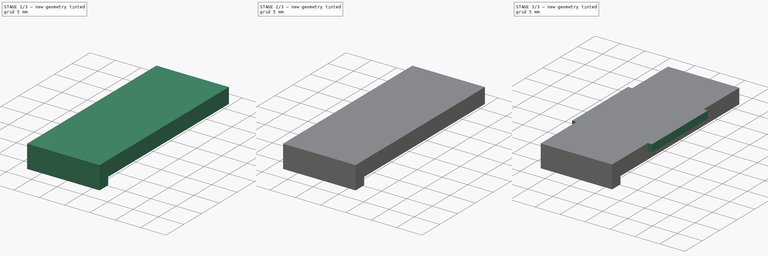
[diagram: build sequence overview — one tinted view per stage of 3, left to right]
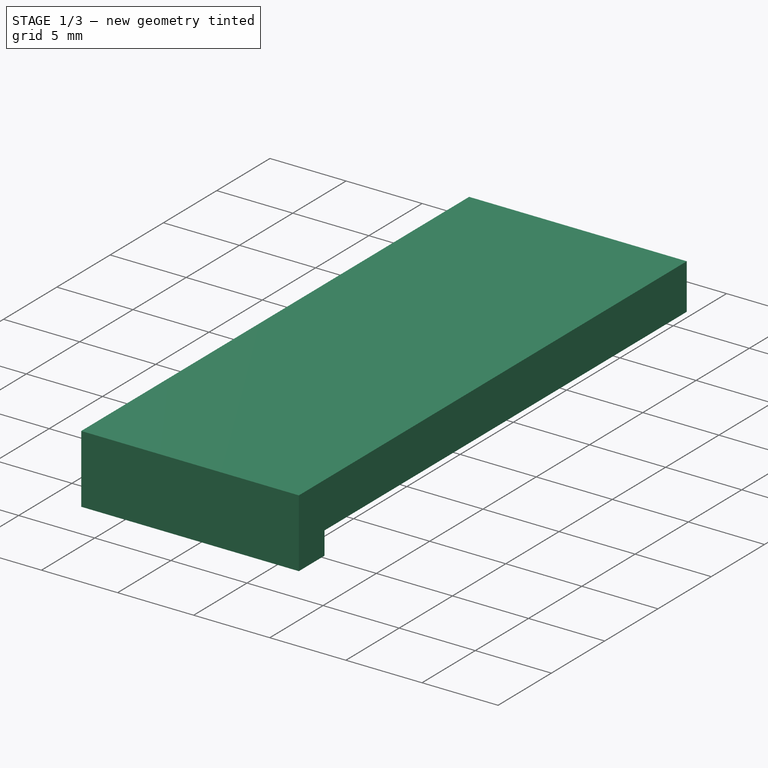
[diagram: stage 1 of 3 — iso view after this stage's code; geometry added in this stage tinted green]
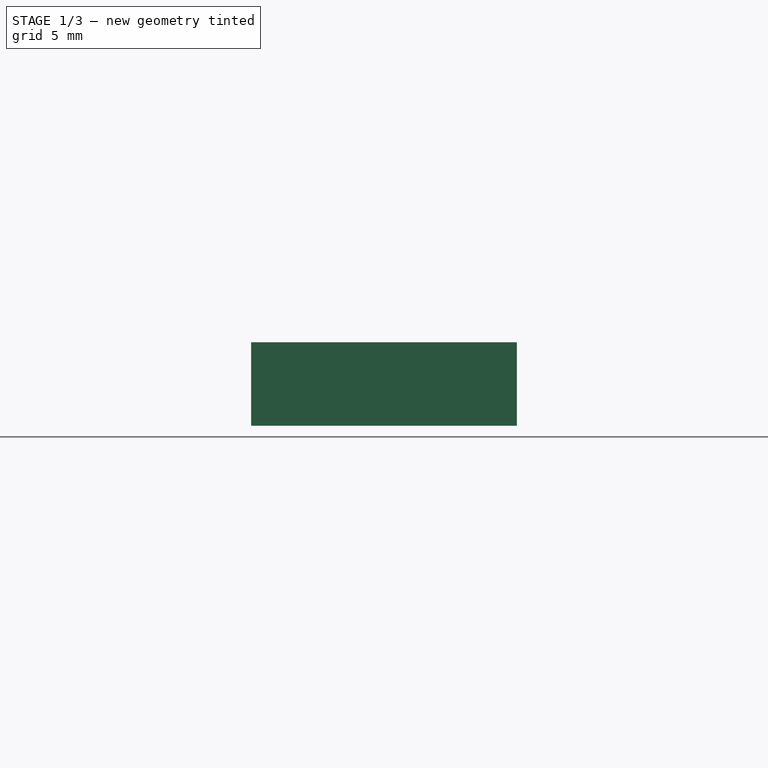
[diagram: stage 1 of 3 — front view after this stage's code; geometry added in this stage tinted green]
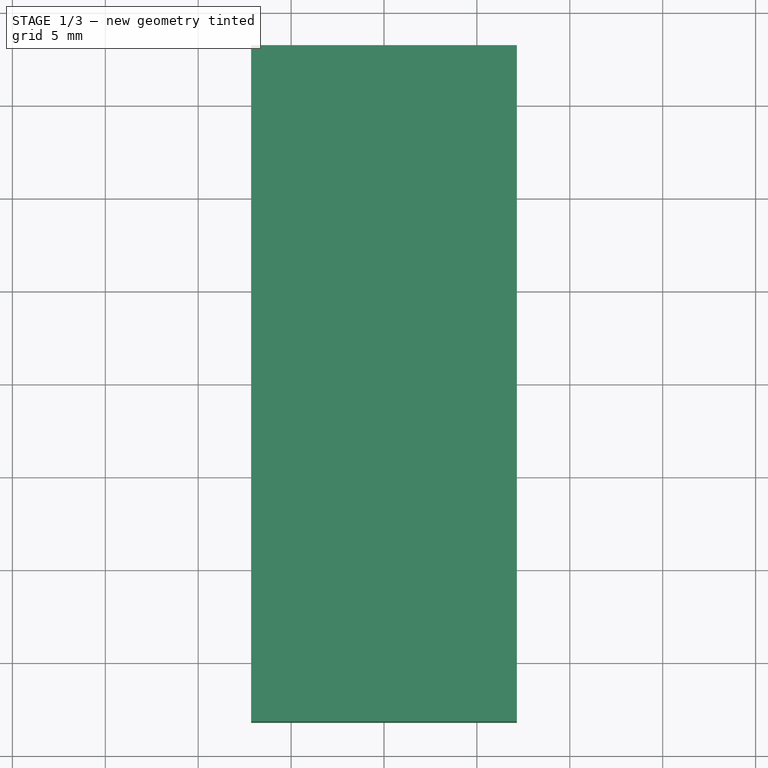
[diagram: stage 1 of 3 — top view after this stage's code; geometry added in this stage tinted green]
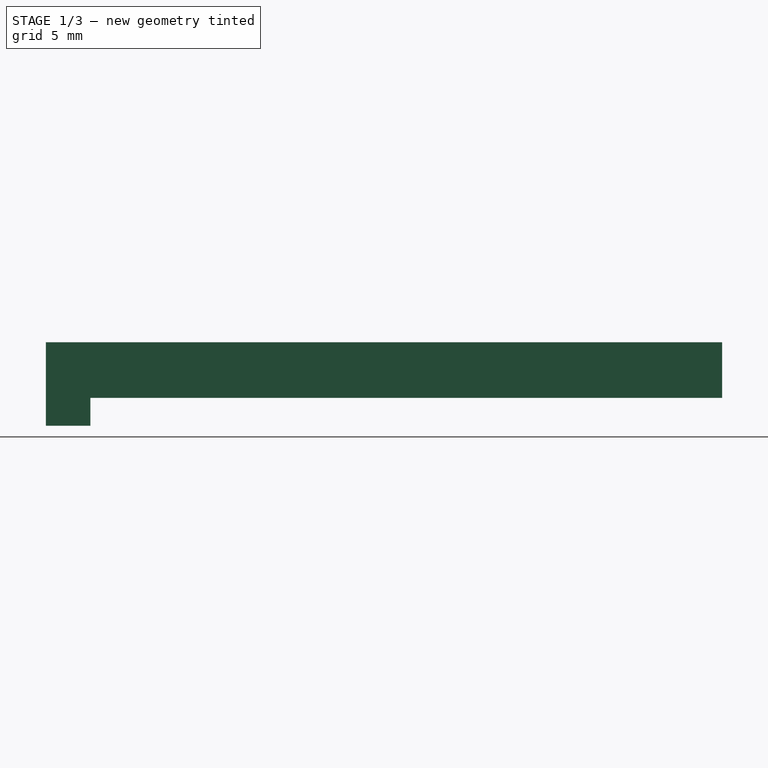
[diagram: stage 1 of 3 — right view after this stage's code; geometry added in this stage tinted green]
FCSTD DOCUMENT  (FreeCAD 1.0R39319 (Git))
Label: SwitchHoleNegative
License: All rights reserved
LicenseURL: https://en.wikipedia.org/wiki/All_rights_reserved
objects: Sketcher::SketchObject×7, PartDesign::Pad×7, PartDesign::Body×3, App::Link×1
note: 38 computed .brp shape members not serialized (recipe doc carries the construction recipe); baked Part::Feature solids carry a one-line shape summary decoded from their .brp
EXTERNAL_REF file=Config.FCStd obj=VarSet
EXTERNAL_REF file=lib/ec11.FCStd obj=EC11B_SW_Vert_F

FEATURE [PartDesign::Body] Body003  label="RotaryPocket"
  AllowCompound = false
  Group = -> [Sketch,Pad,Sketch003,Pad003,Sketch004,Pad004]
  Origin = -> Origin004
  Tip = -> Pad004
FEATURE [Sketcher::SketchObject] Sketch005
  ArcFitTolerance = 1e-06
  AttachmentSupport = -> [XY_Plane]
  FullyConstrained = true
  MakeInternals = false
  MapMode = 5
  sketch-geometry (4):
    g0: LineSegment StartX=-7.15 StartY=-18.2 StartZ=0 EndX=7.15 EndY=-18.2 EndZ=0
    g1: LineSegment StartX=7.15 StartY=-18.2 StartZ=0 EndX=7.15 EndY=18.2 EndZ=0
    g2: LineSegment StartX=7.15 StartY=18.2 StartZ=0 EndX=-7.15 EndY=18.2 EndZ=0
    g3: LineSegment StartX=-7.15 StartY=18.2 StartZ=0 EndX=-7.15 EndY=-18.2 EndZ=0
  constraints (11):
    c: Coincident(g0,g1)
    c: Coincident(g1,g2)
    c: Coincident(g2,g3)
    c: Coincident(g3,g0)
    c: Horizontal(g0)
    c: Horizontal(g2)
    c: Vertical(g1)
    c: Vertical(g3)
    c: Symmetric(g2,g0,g-1)
    c: DistanceX(g2,g2) = 14.3
    c: DistanceY(g3,g3) = 36.4
FEATURE [PartDesign::Pad] Pad005
  Direction = (0,0,1)
  Length = 3
  Length2 = 10
  Profile = -> Sketch005
  ReferenceAxis = -> Sketch005 [N_Axis]
  Refine = true
  Suppressed = false
  Type = 0
FEATURE [Sketcher::SketchObject] Sketch006
  ArcFitTolerance = 1e-06
  AttachmentSupport = -> [Pad005]
  ExternalGeometry = -> [Pad005]
  FullyConstrained = true
  MakeInternals = false
  MapMode = 5
  Placement = pos=(0,0,0) rot=(1,0,0;3.14159rad)
  sketch-geometry (4):
    g0: LineSegment StartX=-7.15 StartY=18.2 StartZ=0 EndX=-7.15 EndY=15.8 EndZ=0
    g1: LineSegment StartX=-7.15 StartY=15.8 StartZ=0 EndX=7.15 EndY=15.8 EndZ=0
    g2: LineSegment StartX=7.15 StartY=15.8 StartZ=0 EndX=7.15 EndY=18.2 EndZ=0
    g3: LineSegment StartX=7.15 StartY=18.2 StartZ=0 EndX=-7.15 EndY=18.2 EndZ=0
  constraints (11):
    c: Coincident(g0,g1)
    c: Coincident(g1,g2)
    c: Coincident(g2,g3)
    c: Coincident(g3,g0)
    c: Vertical(g0)
    c: Vertical(g2)
    c: Horizontal(g1)
    c: Horizontal(g3)
    c: Coincident(g0,g-4)
    c: PointOnObject(g1,g-5)
    c: DistanceY(g2,g2) = 2.4
FEATURE [PartDesign::Pad] Pad006
  BaseFeature = -> Pad005
  Direction = (0,0,-1)
  Length = 1.5
  Length2 = 10
  Profile = -> Sketch006
  ReferenceAxis = -> Sketch006 [N_Axis]
  Refine = true
  Suppressed = false
  Type = 0
  expr: Length = <<Config>>#<<Vars>>.SwitchPlateThickness
FEATURE [PartDesign::Body] Body  label="NiceViewPocket"
  AllowCompound = false
  Group = -> [Sketch005,Pad005,Sketch006,Pad006]
  Origin = -> Origin
  Tip = -> Pad006
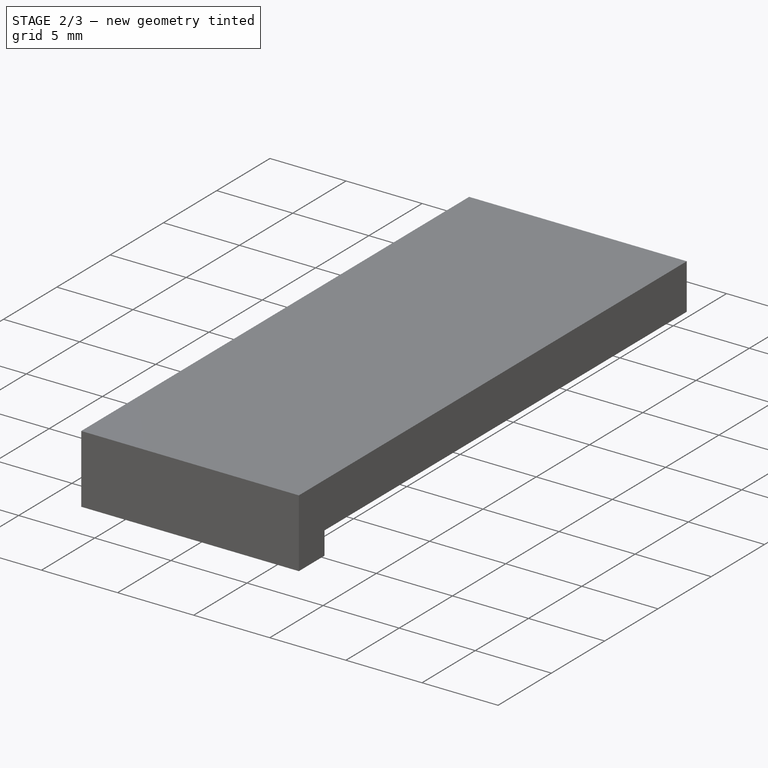
[diagram: stage 2 of 3 — iso view after this stage's code; geometry added in this stage tinted green]
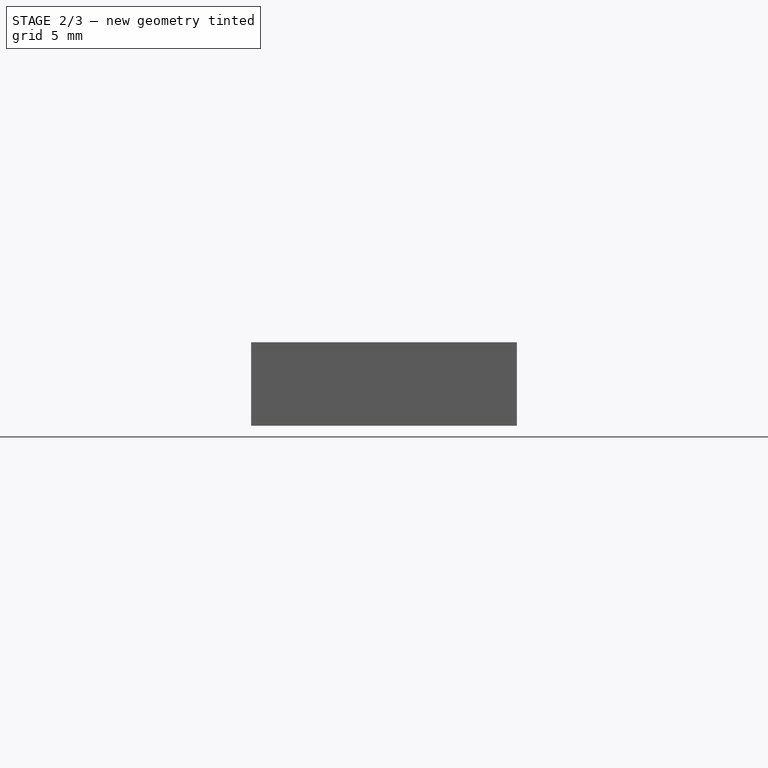
[diagram: stage 2 of 3 — front view after this stage's code; geometry added in this stage tinted green]
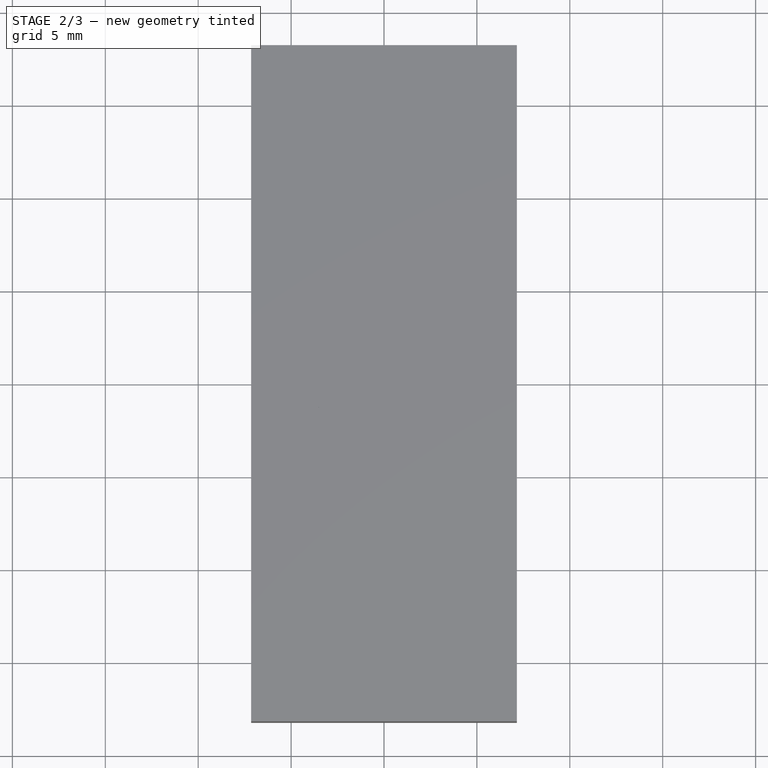
[diagram: stage 2 of 3 — top view after this stage's code; geometry added in this stage tinted green]
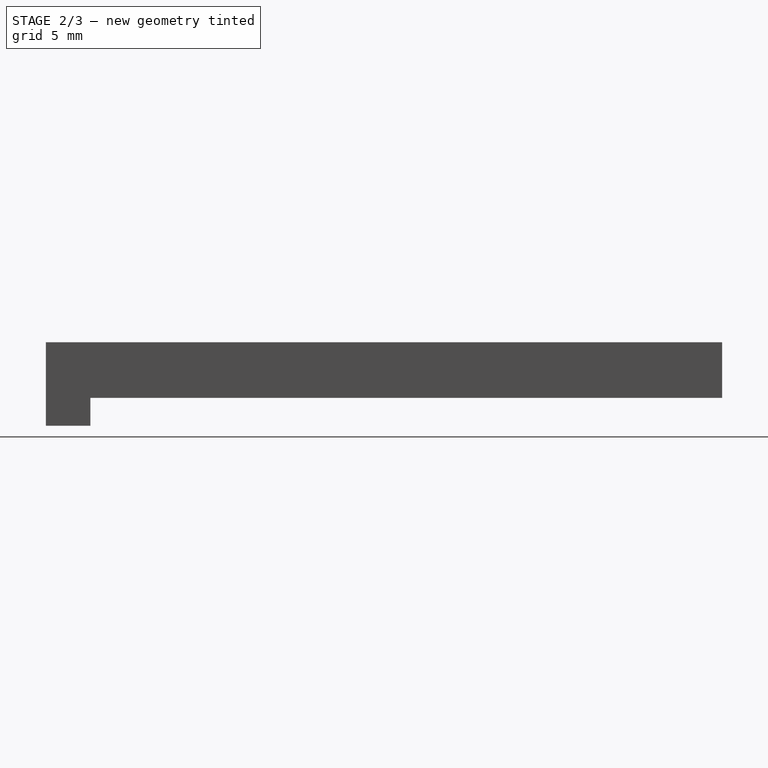
[diagram: stage 2 of 3 — right view after this stage's code; geometry added in this stage tinted green]
FEATURE [PartDesign::Body] Body001  label="SwitchPocket"
  AllowCompound = false
  Group = -> [Sketch001,Pad001,Sketch002,Pad002]
  Origin = -> Origin003
  Placement = pos=(109.5,4.5,0) rot=(0,0,1;0rad)
  Tip = -> Pad002
FEATURE [Sketcher::SketchObject] Sketch
  ArcFitTolerance = 1e-06
  AttachmentSupport = -> [XY_Plane004]
  FullyConstrained = true
  MakeInternals = false
  MapMode = 5
  sketch-geometry (4):
    g0: LineSegment StartX=-6 StartY=-7.1 StartZ=0 EndX=6 EndY=-7.1 EndZ=0
    g1: LineSegment StartX=6 StartY=-7.1 StartZ=0 EndX=6 EndY=7.1 EndZ=0
    g2: LineSegment StartX=6 StartY=7.1 StartZ=0 EndX=-6 EndY=7.1 EndZ=0
    g3: LineSegment StartX=-6 StartY=7.1 StartZ=0 EndX=-6 EndY=-7.1 EndZ=0
  constraints (11):
    c: Coincident(g0,g1)
    c: Coincident(g1,g2)
    c: Coincident(g2,g3)
    c: Coincident(g3,g0)
    c: Horizontal(g0)
    c: Horizontal(g2)
    c: Vertical(g1)
    c: Vertical(g3)
    c: DistanceX(g2,g2) = 12
    c: DistanceY(g3,g3) = 14.2
    c: Symmetric(g2,g0,g-1)
FEATURE [App::Link] Link  label="EC11B-SW-Vert-F"
  LinkPlacement = pos=(0,-0.399999,-5) rot=(0,0,1;0rad)
  LinkedObject = -> <external lib/ec11.FCStd>#EC11B_SW_Vert_F
  Placement = pos=(0,-0.399999,-5) rot=(0,0,1;0rad)
FEATURE [PartDesign::Pad] Pad
  Direction = (0,0,1)
  Length = 1.5
  Length2 = 10
  Profile = -> Sketch
  ReferenceAxis = -> Sketch [N_Axis]
  Refine = true
  Suppressed = false
  Type = 0
  expr: Length = <<Config>>#<<Vars>>.PlateThickness - <<Config>>#<<Vars>>.SwitchPlateThickness
FEATURE [Sketcher::SketchObject] Sketch003
  ArcFitTolerance = 1e-06
  AttachmentSupport = -> [Pad]
  FullyConstrained = true
  MakeInternals = false
  MapMode = 5
  Placement = pos=(0,0,1.5) rot=(0,0,1;0rad)
  sketch-geometry (1):
    g0: Circle CenterX=0 CenterY=0 CenterZ=0 NormalX=0 NormalY=0 NormalZ=1 AngleXU=0 Radius=3.75
  constraints (2):
    c: Coincident(g0,g-1)
    c: Diameter(g0) = 7.5
FEATURE [PartDesign::Pad] Pad003
  BaseFeature = -> Pad
  Direction = (0,0,1)
  Length = 1.5
  Length2 = 10
  Profile = -> Sketch003
  ReferenceAxis = -> Sketch003 [N_Axis]
  Refine = true
  Suppressed = false
  Type = 0
  expr: Length = <<Config>>#<<Vars>>.SwitchPlateThickness
FEATURE [Sketcher::SketchObject] Sketch004
  ArcFitTolerance = 1e-06
  AttachmentSupport = -> [Pad003]
  ExternalGeometry = -> [Pad003]
  FullyConstrained = true
  MakeInternals = false
  MapMode = 5
  Placement = pos=(0,0,1.5) rot=(0,0,1;0rad)
  sketch-geometry (4):
    g0: LineSegment StartX=-1.075 StartY=-7.1 StartZ=0 EndX=1.075 EndY=-7.1 EndZ=0
    g1: LineSegment StartX=1.075 StartY=-7.1 StartZ=0 EndX=1.075 EndY=-5.9 EndZ=0
    g2: LineSegment StartX=1.075 StartY=-5.9 StartZ=0 EndX=-1.075 EndY=-5.9 EndZ=0
    g3: LineSegment StartX=-1.075 StartY=-5.9 StartZ=0 EndX=-1.075 EndY=-7.1 EndZ=0
  constraints (11):
    c: Coincident(g0,g1)
    c: Coincident(g1,g2)
    c: Coincident(g2,g3)
    c: Coincident(g3,g0)
    c: Horizontal(g0)
    c: Vertical(g1)
    c: Vertical(g3)
    c: PointOnObject(g0,g-3)
    c: Symmetric(g1,g2,g-2)
    c: Distance(g1,g3) = 2.15
    c: Distance(g0,g2) = 1.2
FEATURE [PartDesign::Pad] Pad004
  BaseFeature = -> Pad003
  Direction = (0,0,1)
  Length = 1.5
  Length2 = 10
  Profile = -> Sketch004
  ReferenceAxis = -> Sketch004 [N_Axis]
  Refine = true
  Suppressed = false
  Type = 0
  expr: Length = <<Config>>#<<Vars>>.SwitchPlateThickness
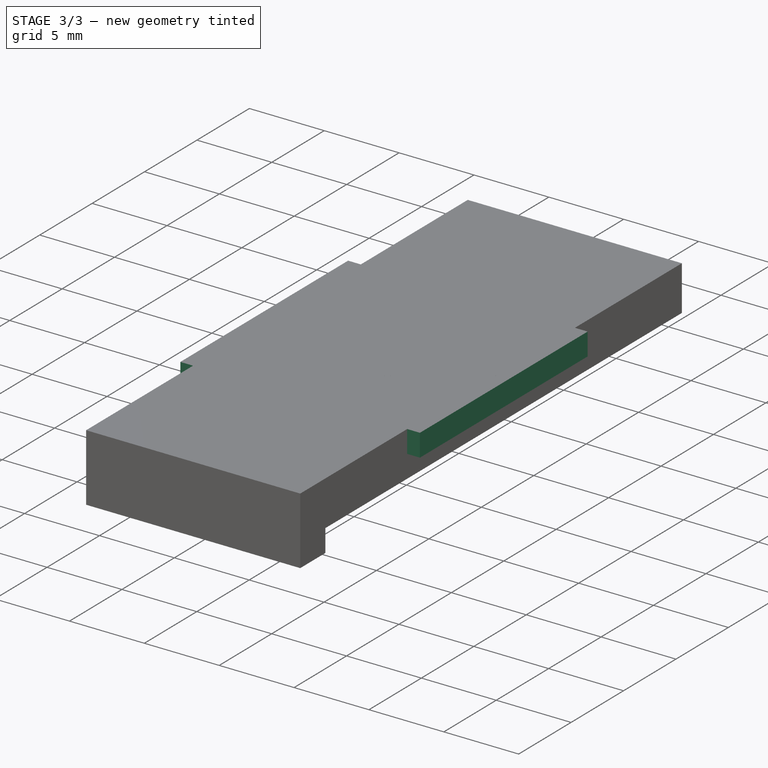
[diagram: stage 3 of 3 — iso view after this stage's code; geometry added in this stage tinted green]
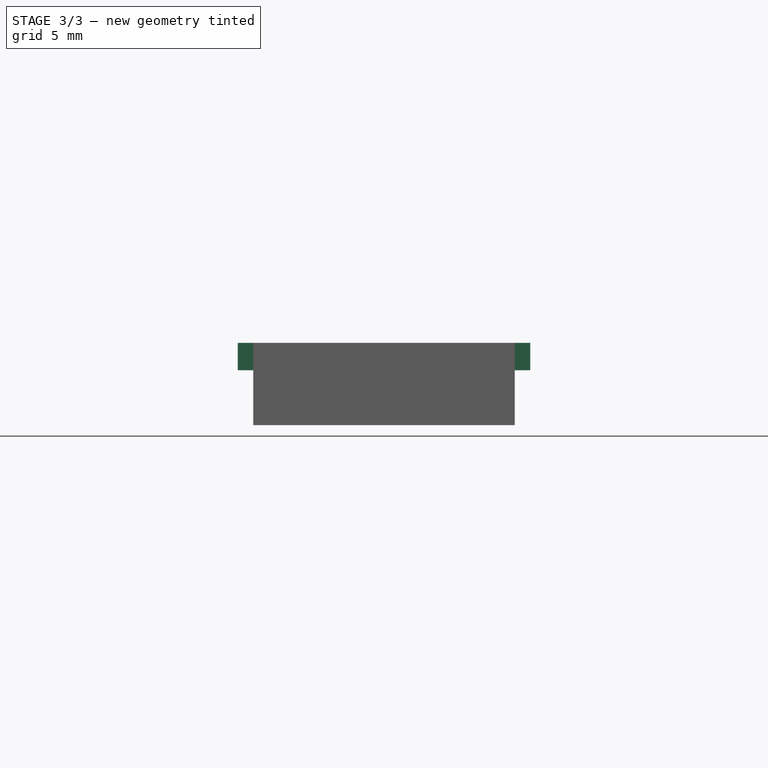
[diagram: stage 3 of 3 — front view after this stage's code; geometry added in this stage tinted green]
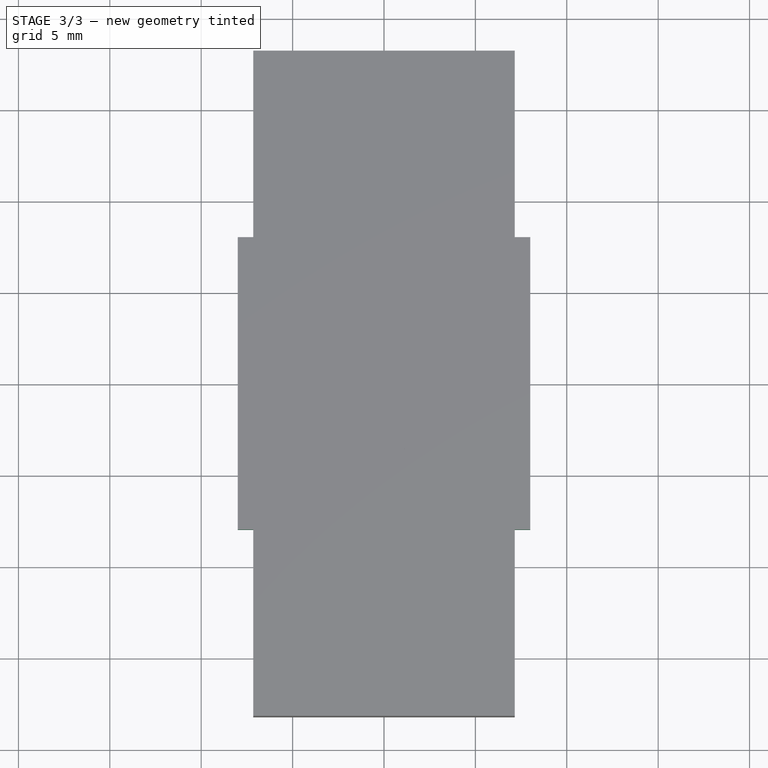
[diagram: stage 3 of 3 — top view after this stage's code; geometry added in this stage tinted green]
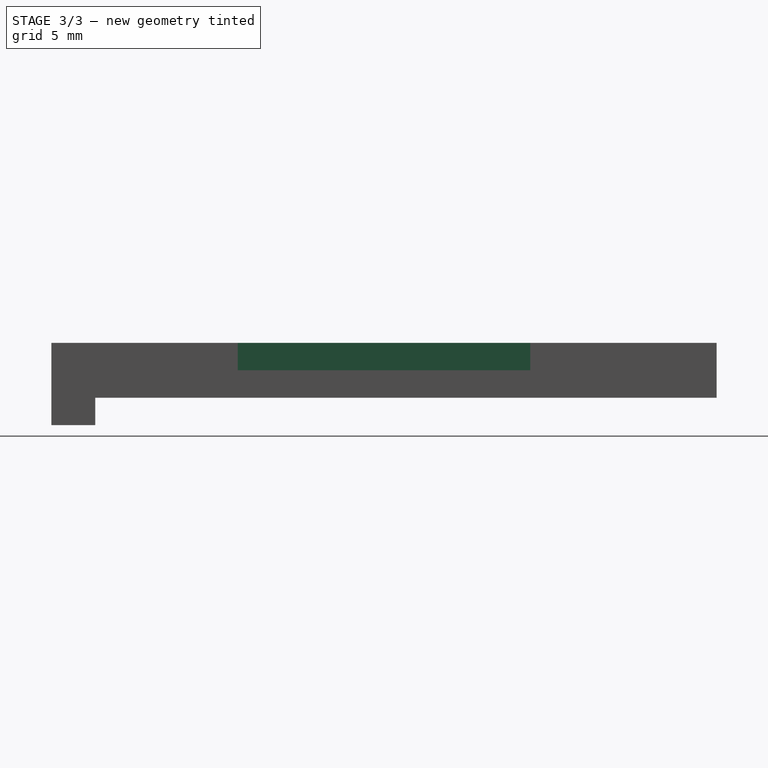
[diagram: stage 3 of 3 — right view after this stage's code; geometry added in this stage tinted green]
FEATURE [Sketcher::SketchObject] Sketch001
  ArcFitTolerance = 1e-06
  AttachmentSupport = -> [XY_Plane003]
  FullyConstrained = true
  MakeInternals = false
  MapMode = 5
  expr: Constraints[8] = <<Config>>#<<Vars>>.SwitchHoleTotal
  expr: Constraints[9] = <<Config>>#<<Vars>>.SwitchHoleTotal
  sketch-geometry (4):
    g0: LineSegment StartX=7.025 StartY=-7.025 StartZ=0 EndX=7.025 EndY=7.025 EndZ=0
    g1: LineSegment StartX=7.025 StartY=7.025 StartZ=0 EndX=-7.025 EndY=7.025 EndZ=0
    g2: LineSegment StartX=-7.025 StartY=7.025 StartZ=0 EndX=-7.025 EndY=-7.025 EndZ=0
    g3: LineSegment StartX=-7.025 StartY=-7.025 StartZ=0 EndX=7.025 EndY=-7.025 EndZ=0
  constraints (11):
    c: Coincident(g0,g1)
    c: Coincident(g1,g2)
    c: Coincident(g2,g3)
    c: Coincident(g3,g0)
    c: Vertical(g0)
    c: Vertical(g2)
    c: Horizontal(g1)
    c: Horizontal(g3)
    c: DistanceX(g1,g1) = 14.05
    c: DistanceY(g2,g2) = 14.05
    c: Symmetric(g1,g0,g-1)
FEATURE [PartDesign::Pad] Pad001
  Direction = (0,0,1)
  Length = 1.5
  Length2 = 10
  Profile = -> Sketch001
  ReferenceAxis = -> Sketch001 [N_Axis]
  Refine = true
  Suppressed = false
  Type = 0
  expr: Length = <<Config>>#<<Vars>>.SwitchPlateThickness
FEATURE [Sketcher::SketchObject] Sketch002
  ArcFitTolerance = 1e-06
  AttachmentSupport = -> [Pad001]
  FullyConstrained = true
  MakeInternals = false
  MapMode = 5
  Placement = pos=(0,0,1.5) rot=(0,0,1;0rad)
  expr: Constraints[8] = <<Config>>#<<Vars>>.SwitchReliefLength
  expr: Constraints[9] = <<Config>>#<<Vars>>.SwitchReliefLength
  sketch-geometry (4):
    g0: LineSegment StartX=-8 StartY=8 StartZ=0 EndX=-8 EndY=-8 EndZ=0
    g1: LineSegment StartX=-8 StartY=-8 StartZ=0 EndX=8 EndY=-8 EndZ=0
    g2: LineSegment StartX=8 StartY=-8 StartZ=0 EndX=8 EndY=8 EndZ=0
    g3: LineSegment StartX=8 StartY=8 StartZ=0 EndX=-8 EndY=8 EndZ=0
  constraints (11):
    c: Coincident(g0,g1)
    c: Coincident(g1,g2)
    c: Coincident(g2,g3)
    c: Coincident(g3,g0)
    c: Vertical(g0)
    c: Vertical(g2)
    c: Horizontal(g1)
    c: Horizontal(g3)
    c: DistanceX(g3,g3) = 16
    c: DistanceY(g0,g0) = 16
    c: Symmetric(g0,g1,g-1)
FEATURE [PartDesign::Pad] Pad002
  BaseFeature = -> Pad001
  Direction = (0,0,1)
  Length = 1.5
  Length2 = 10
  Profile = -> Sketch002
  ReferenceAxis = -> Sketch002 [N_Axis]
  Refine = true
  Suppressed = false
  Type = 0
  expr: Length = <<Config>>#<<Vars>>.PlateThickness - <<Config>>#<<Vars>>.SwitchPlateThickness
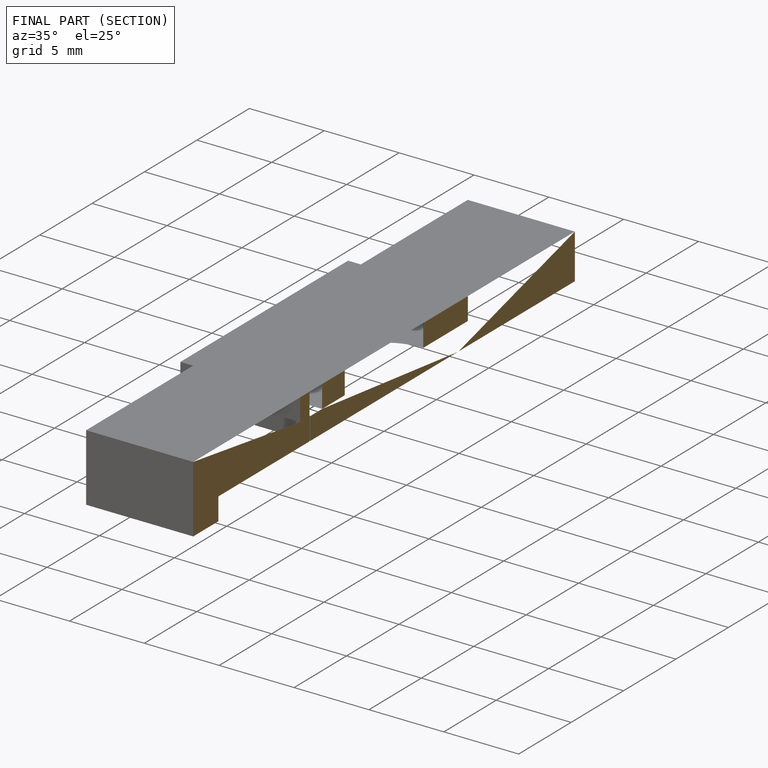
[diagram: finished part — half-section view (interior)]
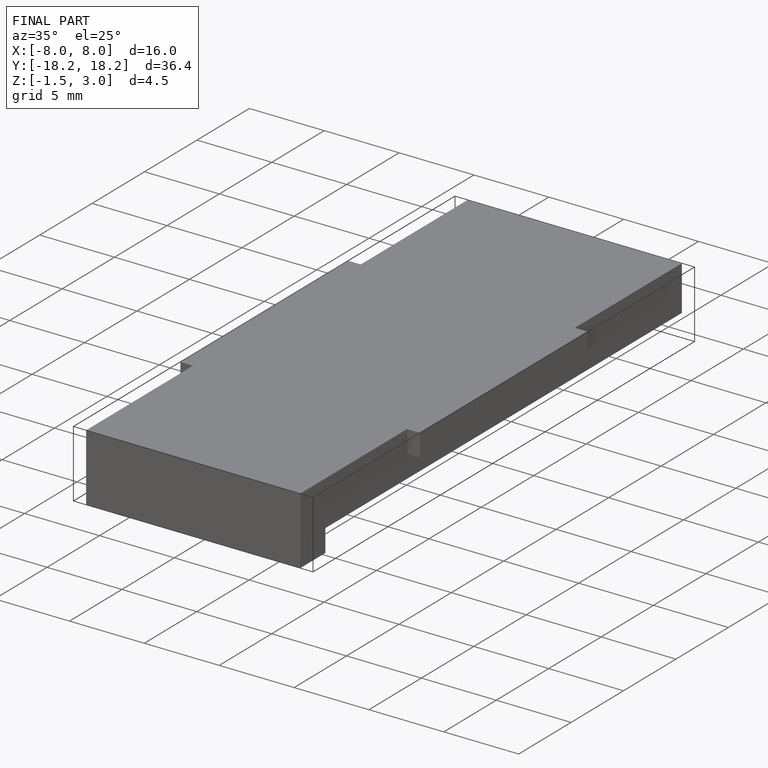
[diagram: finished part — iso view with bounding-box wireframe]
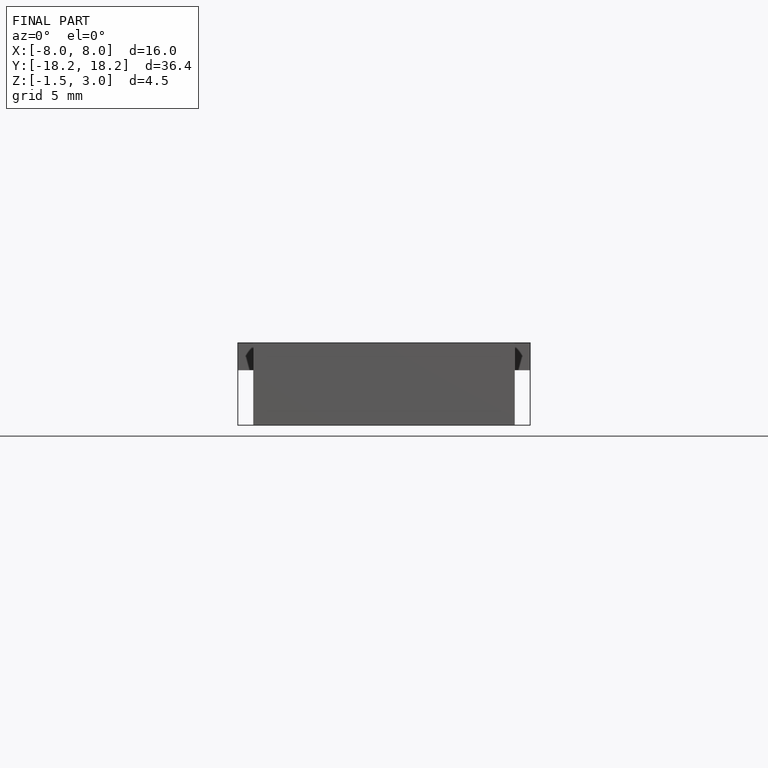
[diagram: finished part — front view with bounding-box wireframe]
